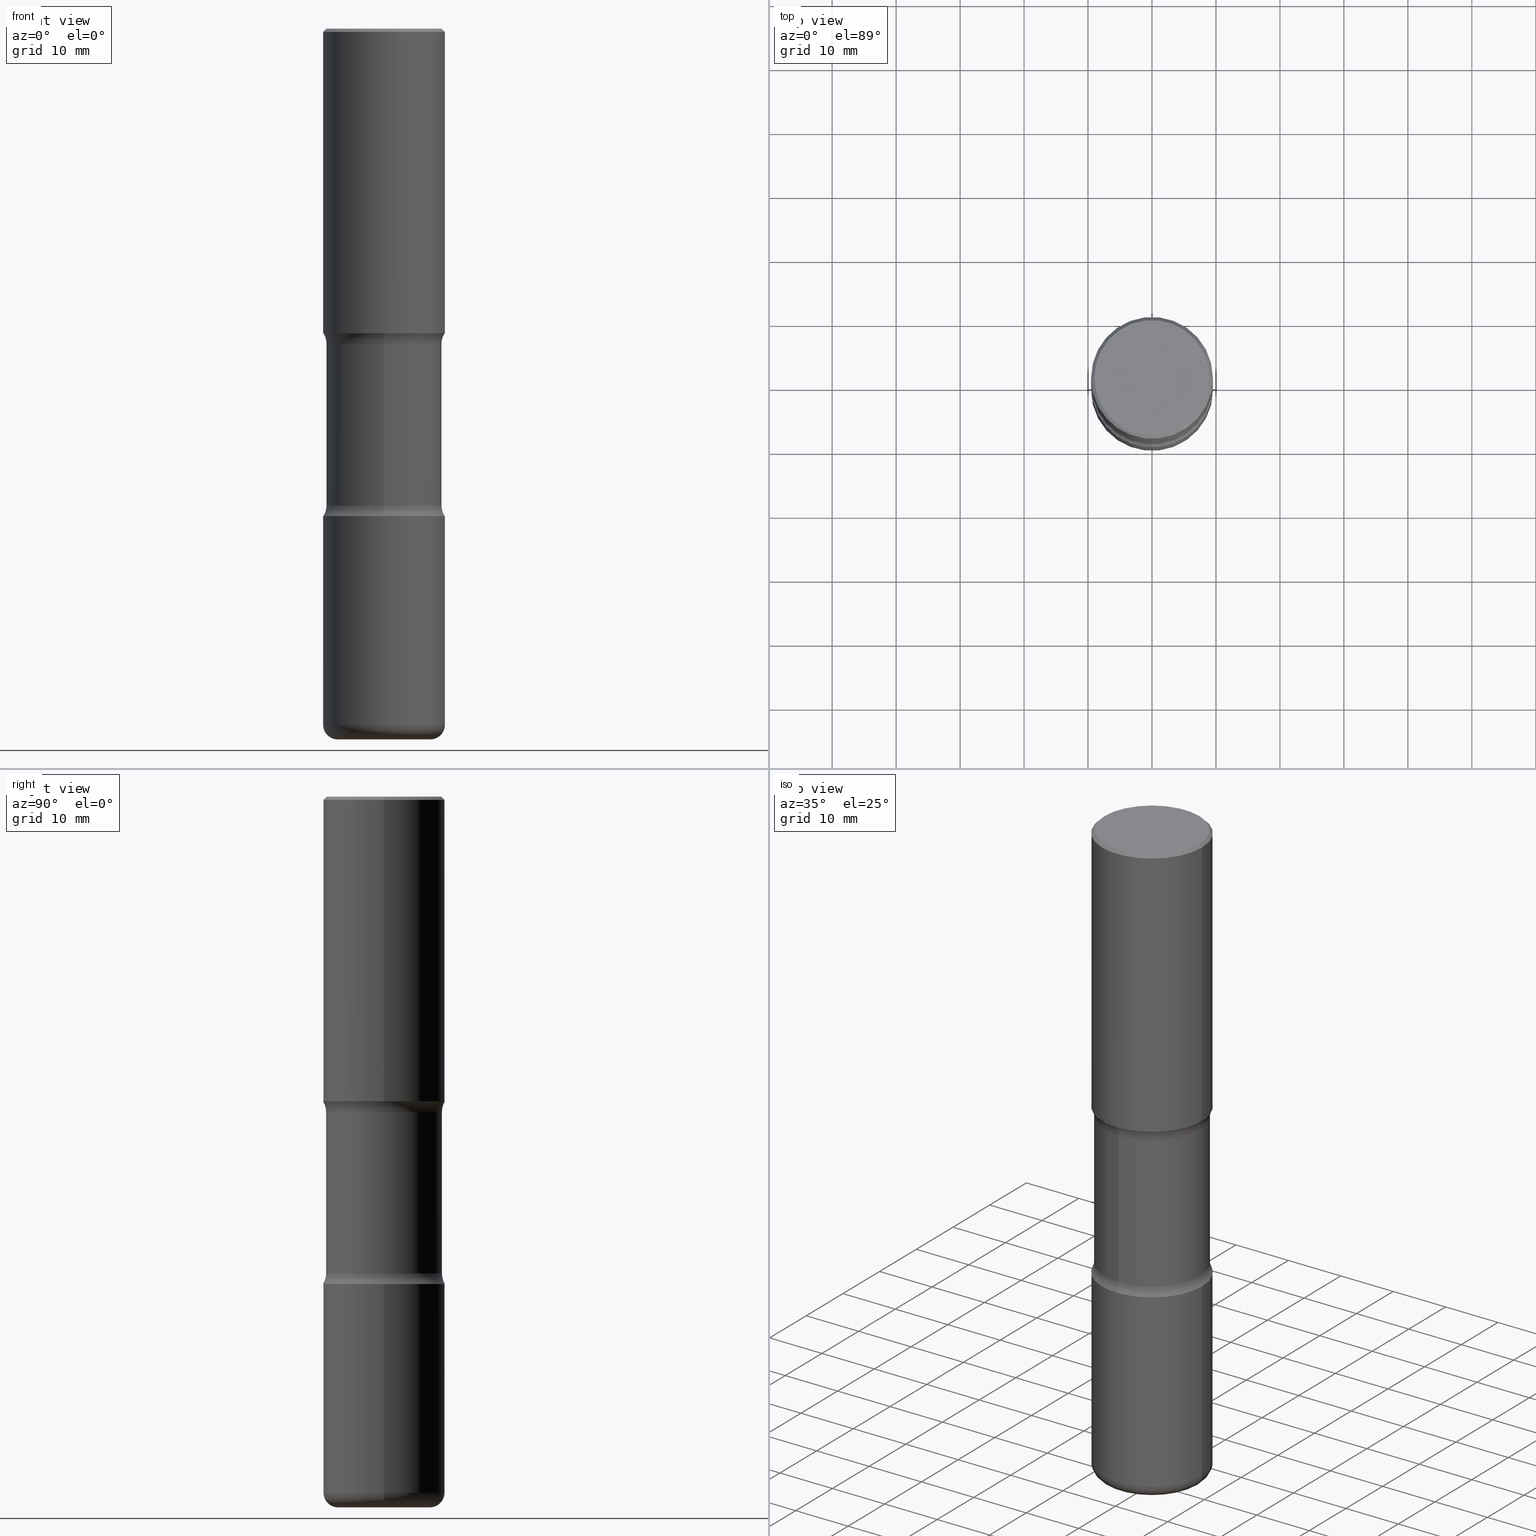
[diagram: canonical four-view strip — front | top / right | iso, engineering-drawing reading convention]
A machine part, canonical four-view strip (front | top / right | iso — engineering-drawing reading convention). The complete STEP part file that produces these views, byte-faithful:
ISO-10303-21;
HEADER;
FILE_DESCRIPTION (( 'STEP AP203' ),
    '1' );
FILE_NAME ('34118.STEP',
    '2024-03-01T23:06:38',
    ( '' ),
    ( '' ),
    'SwSTEP 2.0',
    'SolidWorks 2023',
    '' );
FILE_SCHEMA (( 'CONFIG_CONTROL_DESIGN' ));
ENDSEC;

DATA;
#1 = FACE_OUTER_BOUND ( 'NONE', #129, .T. ) ;
#2 = ORIENTED_EDGE ( 'NONE', *, *, #104, .F. ) ;
#3 = DIRECTION ( 'NONE',  ( 1.000000000000000000, -6.982962677686266711E-15, 4.883557194083113462E-29 ) ) ;
#4 = VERTEX_POINT ( 'NONE', #487 ) ;
#5 = CARTESIAN_POINT ( 'NONE',  ( 2.618611004132424169E-15, 0.3749999999999897304, -3.000000000000000888 ) ) ;
#6 = AXIS2_PLACEMENT_3D ( 'NONE', #414, #370, #409 ) ;
#7 = EDGE_LOOP ( 'NONE', ( #429, #484, #329, #159 ) ) ;
#8 = ORIENTED_EDGE ( 'NONE', *, *, #310, .F. ) ;
#9 = PERSON_AND_ORGANIZATION ( #349, #477 ) ;
#10 = DIRECTION ( 'NONE',  ( 2.497495331405690228E-29, -3.416976393561393039E-15, -1.000000000000000000 ) ) ;
#11 = FACE_OUTER_BOUND ( 'NONE', #351, .T. ) ;
#12 = EDGE_LOOP ( 'NONE', ( #322, #334 ) ) ;
#13 = CARTESIAN_POINT ( 'NONE',  ( 4.890937612370306439E-31, -6.982962677686338448E-17, -0.02000000000000013572 ) ) ;
#14 = AXIS2_PLACEMENT_3D ( 'NONE', #188, #98, #18 ) ;
#15 = CC_DESIGN_APPROVAL ( #324, ( #178 ) ) ;
#16 = LINE ( 'NONE', #307, #406 ) ;
#17 = ADVANCED_FACE ( 'NONE', ( #123 ), #211, .F. ) ;
#18 = DIRECTION ( 'NONE',  ( 6.982962677686265922E-15, 1.000000000000000000, -3.416976393561393039E-15 ) ) ;
#19 = CARTESIAN_POINT ( 'NONE',  ( 0.2850000000000004197, -1.695114190008346703E-14, -4.285000000000000142 ) ) ;
#20 = EDGE_CURVE ( 'NONE', #68, #336, #272, .T. ) ;
#21 = ADVANCED_BREP_SHAPE_REPRESENTATION ( '34118', ( #262, #443, #67, #541 ), #219 ) ;
#22 = AXIS2_PLACEMENT_3D ( 'NONE', #19, #446, #61 ) ;
#23 = DIRECTION ( 'NONE',  ( 2.497495331405690228E-29, -3.416976393561393039E-15, -1.000000000000000000 ) ) ;
#24 = PERSON_AND_ORGANIZATION ( #349, #477 ) ;
#25 = FACE_OUTER_BOUND ( 'NONE', #290, .T. ) ;
#26 = ORIENTED_EDGE ( 'NONE', *, *, #490, .T. ) ;
#27 = CARTESIAN_POINT ( 'NONE',  ( -0.3750000000000002220, 2.548781377355488296E-15, -0.02000000000000013572 ) ) ;
#28 = ORIENTED_EDGE ( 'NONE', *, *, #103, .F. ) ;
#29 = CIRCLE ( 'NONE', #547, 0.3750000000000004441 ) ;
#30 = AXIS2_PLACEMENT_3D ( 'NONE', #46, #255, #389 ) ;
#31 = DIRECTION ( 'NONE',  ( 0.000000000000000000, 0.000000000000000000, 1.000000000000000000 ) ) ;
#32 = DIRECTION ( 'NONE',  ( 6.982962677686265922E-15, 1.000000000000000000, -3.416976393561393039E-15 ) ) ;
#33 = CC_DESIGN_PERSON_AND_ORGANIZATION_ASSIGNMENT ( #24, #200, ( #178 ) ) ;
#34 = CYLINDRICAL_SURFACE ( 'NONE', #533, 0.3564999999999999836 ) ;
#35 = CARTESIAN_POINT ( 'NONE',  ( 2.489426194595200956E-15, 0.3564999999999931557, -1.940442723048481977 ) ) ;
#36 = EDGE_LOOP ( 'NONE', ( #419, #292 ) ) ;
#37 = DIRECTION ( 'NONE',  ( 6.860497997771527618E-15, 1.000000000000000000, 0.000000000000000000 ) ) ;
#38 = CIRCLE ( 'NONE', #391, 0.3750000000000002220 ) ;
#39 = CALENDAR_DATE ( 2024, 1, 3 ) ;
#40 = CARTESIAN_POINT ( 'NONE',  ( 1.077046249923823256E-28, -1.517278655767635025E-14, -4.375000000000000000 ) ) ;
#41 = ORIENTED_EDGE ( 'NONE', *, *, #363, .F. ) ;
#42 = ORIENTED_EDGE ( 'NONE', *, *, #527, .T. ) ;
#43 = FACE_OUTER_BOUND ( 'NONE', #377, .T. ) ;
#44 = PLANE ( 'NONE',  #488 ) ;
#45 = APPROVAL_STATUS ( 'not_yet_approved' ) ;
#46 = CARTESIAN_POINT ( 'NONE',  ( 7.336406418555408669E-29, -1.047444401652943478E-14, -2.999999999999999556 ) ) ;
#47 = DIRECTION ( 'NONE',  ( -1.000000000000000000, 6.982962677686265922E-15, -4.883557194083112340E-29 ) ) ;
#48 = ADVANCED_FACE ( 'NONE', ( #532 ), #169, .T. ) ;
#49 = AXIS2_PLACEMENT_3D ( 'NONE', #481, #295, #254 ) ;
#50 = DIRECTION ( 'NONE',  ( -1.000000000000000000, 6.982962677686265922E-15, -4.883557194083112340E-29 ) ) ;
#51 = ORIENTED_EDGE ( 'NONE', *, *, #270, .T. ) ;
#52 = APPROVAL ( #144, 'UNSPECIFIED' ) ;
#53 = CYLINDRICAL_SURFACE ( 'NONE', #500, 0.3750000000000003886 ) ;
#54 = DIRECTION ( 'NONE',  ( -2.445468806185136597E-29, 3.491481338843145583E-15, 1.000000000000000000 ) ) ;
#55 = FACE_OUTER_BOUND ( 'NONE', #166, .T. ) ;
#56 = CIRCLE ( 'NONE', #6, 0.3750000000000002220 ) ;
#57 = DIRECTION ( 'NONE',  ( 1.000000000000000000, -6.982962677686269866E-15, 0.000000000000000000 ) ) ;
#58 = ADVANCED_FACE ( 'NONE', ( #11 ), #53, .T. ) ;
#59 = DIRECTION ( 'NONE',  ( 6.982962677686265922E-15, 1.000000000000000000, -3.416976393561393039E-15 ) ) ;
#60 = EDGE_CURVE ( 'NONE', #560, #4, #381, .T. ) ;
#61 = DIRECTION ( 'NONE',  ( 1.000000000000000000, -6.982962677686273021E-15, 0.000000000000000000 ) ) ;
#62 = CIRCLE ( 'NONE', #450, 0.3750000000000002220 ) ;
#63 = CALENDAR_DATE ( 2024, 1, 3 ) ;
#64 = FACE_OUTER_BOUND ( 'NONE', #36, .T. ) ;
#65 = COORDINATED_UNIVERSAL_TIME_OFFSET ( 5, 0, .BEHIND. ) ;
#66 = CARTESIAN_POINT ( 'NONE',  ( -1.043851414335219820E-46, 1.490343170380447200E-32, 4.268512490100411279E-18 ) ) ;
#67 = MANIFOLD_SOLID_BREP ( 'Body-Move/Copy2[4]', #180 ) ;
#68 = VERTEX_POINT ( 'NONE', #293 ) ;
#69 = ORIENTED_EDGE ( 'NONE', *, *, #527, .F. ) ;
#70 = ADVANCED_FACE ( 'NONE', ( #86 ), #44, .F. ) ;
#71 = CARTESIAN_POINT ( 'NONE',  ( 4.890937612370306439E-31, -6.982962677686338448E-17, -0.02000000000000013572 ) ) ;
#72 = ORIENTED_EDGE ( 'NONE', *, *, #369, .F. ) ;
#73 = AXIS2_PLACEMENT_3D ( 'NONE', #79, #199, #242 ) ;
#74 = CIRCLE ( 'NONE', #107, 0.1249999999999999584 ) ;
#75 = EDGE_CURVE ( 'NONE', #337, #318, #462, .T. ) ;
#76 = COORDINATED_UNIVERSAL_TIME_OFFSET ( 5, 0, .BEHIND. ) ;
#77 = CARTESIAN_POINT ( 'NONE',  ( 0.3750000000000002220, -2.642516375941189606E-15, -0.02000000000000013572 ) ) ;
#78 = EDGE_LOOP ( 'NONE', ( #197, #26, #203, #415 ) ) ;
#79 = CARTESIAN_POINT ( 'NONE',  ( 4.585254011597132801E-29, -6.546527510330900285E-15, -1.875000000000000666 ) ) ;
#80 = ORIENTED_EDGE ( 'NONE', *, *, #466, .T. ) ;
#81 = CARTESIAN_POINT ( 'NONE',  ( 2.478951750578625787E-15, 0.3550000000000001488, -1.237341619044267019E-15 ) ) ;
#82 = ORIENTED_EDGE ( 'NONE', *, *, #299, .F. ) ;
#83 = EDGE_CURVE ( 'NONE', #514, #560, #228, .T. ) ;
#84 = AXIS2_PLACEMENT_3D ( 'NONE', #398, #54, #222 ) ;
#85 = CARTESIAN_POINT ( 'NONE',  ( 4.690167066012064720E-29, -6.853961813559904754E-15, -1.940442723048480866 ) ) ;
#86 = FACE_OUTER_BOUND ( 'NONE', #347, .T. ) ;
#87 = DIRECTION ( 'NONE',  ( 6.860497997771532351E-15, 1.000000000000000000, 0.000000000000000000 ) ) ;
#88 = CARTESIAN_POINT ( 'NONE',  ( 0.000000000000000000, 0.000000000000000000, 0.000000000000000000 ) ) ;
#89 = SHAPE_DEFINITION_REPRESENTATION ( #478, #21 ) ;
#90 = DIRECTION ( 'NONE',  ( 7.105427357601001859E-15, 1.000000000000000000, -3.491481338843145583E-15 ) ) ;
#91 = EDGE_CURVE ( 'NONE', #514, #496, #160, .T. ) ;
#92 = CARTESIAN_POINT ( 'NONE',  ( 1.069892602705997485E-28, -1.527523085743876365E-14, -4.375000000000000888 ) ) ;
#93 = CIRCLE ( 'NONE', #132, 0.3750000000000002220 ) ;
#94 = VECTOR ( 'NONE', #151, 39.37007874015748143 ) ;
#95 = VERTEX_POINT ( 'NONE', #191 ) ;
#96 = ORIENTED_EDGE ( 'NONE', *, *, #265, .F. ) ;
#97 = ORIENTED_EDGE ( 'NONE', *, *, #75, .T. ) ;
#98 = DIRECTION ( 'NONE',  ( 2.497495331405690228E-29, -3.416976393561393039E-15, -1.000000000000000000 ) ) ;
#99 = DIRECTION ( 'NONE',  ( 1.000000000000000000, -6.982962677686266711E-15, 4.876231632511985941E-29 ) ) ;
#100 = AXIS2_PLACEMENT_3D ( 'NONE', #131, #23, #143 ) ;
#101 = CC_DESIGN_SECURITY_CLASSIFICATION ( #317, ( #445 ) ) ;
#102 = CARTESIAN_POINT ( 'NONE',  ( 4.526724170724010211E-29, -6.630345573772872586E-15, -1.875000000000000666 ) ) ;
#103 = EDGE_CURVE ( 'NONE', #243, #318, #402, .T. ) ;
#104 = EDGE_CURVE ( 'NONE', #434, #243, #29, .T. ) ;
#105 = CARTESIAN_POINT ( 'NONE',  ( -2.572686749164281343E-15, -0.3750000000000069944, -1.874999999999999334 ) ) ;
#106 = FACE_OUTER_BOUND ( 'NONE', #503, .T. ) ;
#107 = AXIS2_PLACEMENT_3D ( 'NONE', #425, #50, #528 ) ;
#108 = DIRECTION ( 'NONE',  ( -2.445468806185136877E-29, 3.491481338843145188E-15, 1.000000000000000000 ) ) ;
#109 = ORIENTED_EDGE ( 'NONE', *, *, #226, .F. ) ;
#110 = ADVANCED_FACE ( 'NONE', ( #55 ), #494, .F. ) ;
#111 = CALENDAR_DATE ( 2024, 1, 3 ) ;
#112 = DIRECTION ( 'NONE',  ( 2.497495331405690228E-29, -3.416976393561393039E-15, -1.000000000000000000 ) ) ;
#113 = APPLICATION_PROTOCOL_DEFINITION ( 'international standard', 'config_control_design', 1994, #138 ) ;
#114 = CYLINDRICAL_SURFACE ( 'NONE', #539, 0.3750000000000003886 ) ;
#115 = VECTOR ( 'NONE', #108, 39.37007874015748143 ) ;
#116 = CIRCLE ( 'NONE', #392, 0.3750000000000003886 ) ;
#117 = DIRECTION ( 'NONE',  ( 2.497495331405690228E-29, -3.416976393561393039E-15, -1.000000000000000000 ) ) ;
#118 = VERTEX_POINT ( 'NONE', #185 ) ;
#119 = COORDINATED_UNIVERSAL_TIME_OFFSET ( 5, 0, .BEHIND. ) ;
#120 = CARTESIAN_POINT ( 'NONE',  ( -3.303329785926944712E-15, -0.4815000000000068114, -1.940442723048479312 ) ) ;
#121 = ORIENTED_EDGE ( 'NONE', *, *, #155, .T. ) ;
#122 = DIRECTION ( 'NONE',  ( 6.982962677686266711E-15, 1.000000000000000000, -3.065187089665372450E-15 ) ) ;
#123 = FACE_OUTER_BOUND ( 'NONE', #163, .T. ) ;
#124 = VECTOR ( 'NONE', #513, 39.37007874015748143 ) ;
#125 = AXIS2_PLACEMENT_3D ( 'NONE', #245, #214, #291 ) ;
#126 = FACE_OUTER_BOUND ( 'NONE', #12, .T. ) ;
#127 = VERTEX_POINT ( 'NONE', #404 ) ;
#128 = DIRECTION ( 'NONE',  ( 2.497495331405690228E-29, -3.416976393561393039E-15, -1.000000000000000000 ) ) ;
#129 = EDGE_LOOP ( 'NONE', ( #505, #338, #546, #2 ) ) ;
#130 = CARTESIAN_POINT ( 'NONE',  ( -0.3750000000000003886, 2.664535259100378458E-15, -1.844600658845591560E-29 ) ) ;
#131 = CARTESIAN_POINT ( 'NONE',  ( 7.336406418555408669E-29, -1.047444401652943478E-14, -2.999999999999999556 ) ) ;
#132 = AXIS2_PLACEMENT_3D ( 'NONE', #13, #311, #542 ) ;
#133 = ADVANCED_FACE ( 'NONE', ( #498 ), #368, .F. ) ;
#134 = AXIS2_PLACEMENT_3D ( 'NONE', #85, #128, #250 ) ;
#135 = DIRECTION ( 'NONE',  ( 2.497495331405690228E-29, -3.416976393561393039E-15, -1.000000000000000000 ) ) ;
#136 = DIRECTION ( 'NONE',  ( 6.982962677686265922E-15, 1.000000000000000000, -3.065187089665373239E-15 ) ) ;
#137 = DIRECTION ( 'NONE',  ( 6.982962677686265922E-15, 1.000000000000000000, -3.416976393561393039E-15 ) ) ;
#138 = APPLICATION_CONTEXT ( 'configuration controlled 3d designs of mechanical parts and assemblies' ) ;
#139 = CARTESIAN_POINT ( 'NONE',  ( -1.043851414335219820E-46, 1.490343170380447200E-32, 4.268512490100411279E-18 ) ) ;
#140 = CIRCLE ( 'NONE', #461, 0.2850000000000004197 ) ;
#141 = ADVANCED_FACE ( 'NONE', ( #362 ), #264, .T. ) ;
#142 = CARTESIAN_POINT ( 'NONE',  ( 4.585254011597132801E-29, -6.546527510330900285E-15, -1.875000000000000666 ) ) ;
#143 = DIRECTION ( 'NONE',  ( 6.982962677686266711E-15, 1.000000000000000000, -2.913971193241879189E-15 ) ) ;
#144 = APPROVAL_STATUS ( 'not_yet_approved' ) ;
#145 = CARTESIAN_POINT ( 'NONE',  ( -0.3750000000000003886, 2.664535259100378458E-15, -1.844600658845591560E-29 ) ) ;
#146 = ORIENTED_EDGE ( 'NONE', *, *, #454, .F. ) ;
#147 = VERTEX_POINT ( 'NONE', #105 ) ;
#148 = AXIS2_PLACEMENT_3D ( 'NONE', #184, #449, #364 ) ;
#149 = LOCAL_TIME ( 18, 6, 38.00000000000000000, #296 ) ;
#150 = DESIGN_CONTEXT ( 'detailed design', #420, 'design' ) ;
#151 = DIRECTION ( 'NONE',  ( -0.7071067811865461294, 2.468850131082242072E-15, -0.7071067811865489050 ) ) ;
#152 = EDGE_CURVE ( 'NONE', #318, #337, #38, .T. ) ;
#153 = PLANE ( 'NONE',  #217 ) ;
#154 = DIMENSIONAL_EXPONENTS ( 1.000000000000000000, 0.000000000000000000, 0.000000000000000000, 0.000000000000000000, 0.000000000000000000, 0.000000000000000000, 0.000000000000000000 ) ;
#155 = EDGE_CURVE ( 'NONE', #241, #95, #556, .T. ) ;
#156 = PERSON_AND_ORGANIZATION_ROLE ( 'design_owner' ) ;
#157 = CARTESIAN_POINT ( 'NONE',  ( 0.3750000000000002220, -1.309305502066178637E-14, -2.999999999999999556 ) ) ;
#158 = ORIENTED_EDGE ( 'NONE', *, *, #202, .T. ) ;
#159 = ORIENTED_EDGE ( 'NONE', *, *, #83, .F. ) ;
#160 = CIRCLE ( 'NONE', #100, 0.3750000000000002220 ) ;
#161 = APPROVAL_DATE_TIME ( #417, #324 ) ;
#162 = CARTESIAN_POINT ( 'NONE',  ( 0.000000000000000000, 0.000000000000000000, 0.000000000000000000 ) ) ;
#163 = EDGE_LOOP ( 'NONE', ( #240, #97 ) ) ;
#164 = CARTESIAN_POINT ( 'NONE',  ( 4.690167066012064720E-29, -6.853961813559904754E-15, -1.940442723048480866 ) ) ;
#165 = ORIENTED_EDGE ( 'NONE', *, *, #60, .F. ) ;
#166 = EDGE_LOOP ( 'NONE', ( #460, #80, #42, #251 ) ) ;
#167 = CYLINDRICAL_SURFACE ( 'NONE', #125, 0.3750000000000003886 ) ;
#168 = EDGE_CURVE ( 'NONE', #276, #147, #475, .T. ) ;
#169 = CYLINDRICAL_SURFACE ( 'NONE', #181, 0.3750000000000003886 ) ;
#170 = ADVANCED_FACE ( 'NONE', ( #106 ), #269, .F. ) ;
#171 = AXIS2_PLACEMENT_3D ( 'NONE', #142, #306, #59 ) ;
#172 = TOROIDAL_SURFACE ( 'NONE', #557, 0.2850000000000004197, 0.09000000000000020484 ) ;
#173 = CARTESIAN_POINT ( 'NONE',  ( 4.526724170724010211E-29, -6.630345573772872586E-15, -1.875000000000000666 ) ) ;
#174 = ORIENTED_EDGE ( 'NONE', *, *, #168, .T. ) ;
#175 = ORIENTED_EDGE ( 'NONE', *, *, #83, .T. ) ;
#176 = DIRECTION ( 'NONE',  ( 1.000000000000000000, -6.982962677686266711E-15, 4.883557194083113462E-29 ) ) ;
#177 = CARTESIAN_POINT ( 'NONE',  ( 4.585254011597132801E-29, -6.546527510330900285E-15, -1.875000000000000666 ) ) ;
#178 = PRODUCT_DEFINITION ( 'UNKNOWN', '', #445, #150 ) ;
#179 = ORIENTED_EDGE ( 'NONE', *, *, #363, .T. ) ;
#180 = CLOSED_SHELL ( 'NONE', ( #141, #230, #110, #133, #170, #509, #300, #403 ) ) ;
#181 = AXIS2_PLACEMENT_3D ( 'NONE', #439, #519, #390 ) ;
#182 = CARTESIAN_POINT ( 'NONE',  ( -2.509227142684892896E-15, -0.3565000000000068114, -1.940442723048479756 ) ) ;
#183 = EDGE_CURVE ( 'NONE', #243, #434, #236, .T. ) ;
#184 = CARTESIAN_POINT ( 'NONE',  ( 4.697601167951830213E-29, -6.843315756459355709E-15, -1.940442723048480866 ) ) ;
#185 = CARTESIAN_POINT ( 'NONE',  ( -0.3750000000000004441, -6.436433094535026432E-16, -1.875000000000000666 ) ) ;
#186 = EDGE_CURVE ( 'NONE', #453, #382, #93, .T. ) ;
#187 = CONICAL_SURFACE ( 'NONE', #189, 0.3750000000000002220, 0.7853981633974463916 ) ;
#188 = CARTESIAN_POINT ( 'NONE',  ( 4.697601167951830213E-29, -6.843315756459355709E-15, -1.940442723048480866 ) ) ;
#189 = AXIS2_PLACEMENT_3D ( 'NONE', #278, #457, #504 ) ;
#190 = CC_DESIGN_DATE_AND_TIME_ASSIGNMENT ( #193, #544, ( #178 ) ) ;
#191 = CARTESIAN_POINT ( 'NONE',  ( -0.3550000000000001488, 2.513866563967057041E-15, 4.268512490082953109E-18 ) ) ;
#192 = PRODUCT ( '34118', '34118', '', ( #282 ) ) ;
#193 = DATE_AND_TIME ( #63, #436 ) ;
#194 = DIRECTION ( 'NONE',  ( -2.445468806185136597E-29, 3.491481338843145583E-15, 1.000000000000000000 ) ) ;
#195 = ORIENTED_EDGE ( 'NONE', *, *, #441, .T. ) ;
#196 = LINE ( 'NONE', #549, #94 ) ;
#197 = ORIENTED_EDGE ( 'NONE', *, *, #312, .T. ) ;
#198 = AXIS2_PLACEMENT_3D ( 'NONE', #354, #535, #136 ) ;
#199 = DIRECTION ( 'NONE',  ( -2.445468806185136597E-29, 3.491481338843145583E-15, 1.000000000000000000 ) ) ;
#200 = PERSON_AND_ORGANIZATION_ROLE ( 'creator' ) ;
#201 = DIRECTION ( 'NONE',  ( 1.000000000000000000, -6.982962677686266711E-15, 4.876231632511985941E-29 ) ) ;
#202 = EDGE_CURVE ( 'NONE', #118, #127, #257, .T. ) ;
#203 = ORIENTED_EDGE ( 'NONE', *, *, #183, .F. ) ;
#204 = VERTEX_POINT ( 'NONE', #182 ) ;
#205 = EDGE_CURVE ( 'NONE', #336, #243, #399, .T. ) ;
#206 = ORIENTED_EDGE ( 'NONE', *, *, #401, .F. ) ;
#207 = AXIS2_PLACEMENT_3D ( 'NONE', #327, #117, #32 ) ;
#208 = APPROVAL_PERSON_ORGANIZATION ( #9, #427, #260 ) ;
#209 = APPROVAL_DATE_TIME ( #249, #427 ) ;
#210 = DIRECTION ( 'NONE',  ( -1.000000000000000000, 6.982962677686265922E-15, -4.876176775795935793E-29 ) ) ;
#211 = PLANE ( 'NONE',  #405 ) ;
#212 = DIRECTION ( 'NONE',  ( 2.438088387897960049E-29, -3.491481338843145188E-15, -1.000000000000000000 ) ) ;
#213 = DIRECTION ( 'NONE',  ( -2.445468806185136597E-29, 3.491481338843145583E-15, 1.000000000000000000 ) ) ;
#214 = DIRECTION ( 'NONE',  ( -2.445468806185136597E-29, 3.491481338843145583E-15, 1.000000000000000000 ) ) ;
#215 = ORIENTED_EDGE ( 'NONE', *, *, #186, .T. ) ;
#216 = DIRECTION ( 'NONE',  ( -6.982962677686264344E-15, -1.000000000000000000, 0.000000000000000000 ) ) ;
#217 = AXIS2_PLACEMENT_3D ( 'NONE', #321, #366, #422 ) ;
#218 = TOROIDAL_SURFACE ( 'NONE', #207, 0.4815000000000000946, 0.1250000000000000555 ) ;
#219 =( GEOMETRIC_REPRESENTATION_CONTEXT ( 3 ) GLOBAL_UNCERTAINTY_ASSIGNED_CONTEXT ( ( #224 ) ) GLOBAL_UNIT_ASSIGNED_CONTEXT ( ( #421, #515, #408 ) ) REPRESENTATION_CONTEXT ( 'NONE', 'WORKASPACE' ) );
#220 = DIRECTION ( 'NONE',  ( -2.445468806185136597E-29, 3.491481338843145583E-15, 1.000000000000000000 ) ) ;
#221 = CARTESIAN_POINT ( 'NONE',  ( 7.172963523267356402E-29, -1.025082777674240497E-14, -2.934557276951519800 ) ) ;
#222 = DIRECTION ( 'NONE',  ( 1.000000000000000000, -6.982962677686269866E-15, 0.000000000000000000 ) ) ;
#223 = AXIS2_PLACEMENT_3D ( 'NONE', #356, #536, #137 ) ;
#224 = UNCERTAINTY_MEASURE_WITH_UNIT (LENGTH_MEASURE( 1.000000000000000082E-05 ), #421, 'distance_accuracy_value', 'NONE');
#225 = CARTESIAN_POINT ( 'NONE',  ( 0.3750000000000003886, -2.618611004132352383E-15, 1.828566290923477884E-29 ) ) ;
#226 = EDGE_CURVE ( 'NONE', #4, #560, #266, .T. ) ;
#227 = DIRECTION ( 'NONE',  ( -2.445468806185136877E-29, 3.491481338843145188E-15, 1.000000000000000000 ) ) ;
#228 = CIRCLE ( 'NONE', #510, 0.1250000000000001110 ) ;
#229 = DIRECTION ( 'NONE',  ( 6.982962677686266711E-15, 1.000000000000000000, -3.065187089665372450E-15 ) ) ;
#230 = ADVANCED_FACE ( 'NONE', ( #492 ), #328, .F. ) ;
#231 = FACE_OUTER_BOUND ( 'NONE', #253, .T. ) ;
#232 = DIRECTION ( 'NONE',  ( -2.445468806185136597E-29, 3.491481338843145583E-15, 1.000000000000000000 ) ) ;
#233 = EDGE_LOOP ( 'NONE', ( #397, #121 ) ) ;
#234 = CARTESIAN_POINT ( 'NONE',  ( -0.3750000000000002220, -1.005318551763577873E-14, -2.999999999999999556 ) ) ;
#235 = ORIENTED_EDGE ( 'NONE', *, *, #103, .T. ) ;
#236 = CIRCLE ( 'NONE', #84, 0.3750000000000004441 ) ;
#237 = AXIS2_PLACEMENT_3D ( 'NONE', #252, #90, #474 ) ;
#238 = EDGE_CURVE ( 'NONE', #127, #453, #16, .T. ) ;
#239 = CARTESIAN_POINT ( 'NONE',  ( 2.489426194595261699E-15, 0.3564999999999848290, -4.375000000000000888 ) ) ;
#240 = ORIENTED_EDGE ( 'NONE', *, *, #152, .T. ) ;
#241 = VERTEX_POINT ( 'NONE', #553 ) ;
#242 = DIRECTION ( 'NONE',  ( 1.000000000000000000, -6.982962677686265133E-15, 0.000000000000000000 ) ) ;
#243 = VERTEX_POINT ( 'NONE', #274 ) ;
#244 = PERSON_AND_ORGANIZATION ( #349, #477 ) ;
#245 = CARTESIAN_POINT ( 'NONE',  ( 0.000000000000000000, 0.000000000000000000, 0.000000000000000000 ) ) ;
#246 = EDGE_LOOP ( 'NONE', ( #357, #480, #195, #174 ) ) ;
#247 = AXIS2_PLACEMENT_3D ( 'NONE', #221, #135, #476 ) ;
#248 = CIRCLE ( 'NONE', #489, 0.1250000000000001110 ) ;
#249 = DATE_AND_TIME ( #485, #149 ) ;
#250 = DIRECTION ( 'NONE',  ( 6.982962677686266711E-15, 1.000000000000000000, -3.065187089665372450E-15 ) ) ;
#251 = ORIENTED_EDGE ( 'NONE', *, *, #441, .F. ) ;
#252 = CARTESIAN_POINT ( 'NONE',  ( -0.2850000000000004197, -1.293595074002659227E-14, -4.285000000000000142 ) ) ;
#253 = EDGE_LOOP ( 'NONE', ( #470, #367, #175, #339 ) ) ;
#254 = DIRECTION ( 'NONE',  ( 1.000000000000000000, -6.982962677686263555E-15, 0.000000000000000000 ) ) ;
#255 = DIRECTION ( 'NONE',  ( -2.497495331405689947E-29, 3.416976393561393039E-15, 1.000000000000000000 ) ) ;
#256 = ORIENTED_EDGE ( 'NONE', *, *, #183, .T. ) ;
#257 = CIRCLE ( 'NONE', #352, 0.3750000000000004441 ) ;
#258 = LOCAL_TIME ( 18, 6, 38.00000000000000000, #430 ) ;
#259 = EDGE_CURVE ( 'NONE', #496, #514, #56, .T. ) ;
#260 = APPROVAL_ROLE ( '' ) ;
#261 = DIRECTION ( 'NONE',  ( -1.000000000000000000, 6.982962677686265922E-15, -4.876176775795935793E-29 ) ) ;
#262 = MANIFOLD_SOLID_BREP ( 'Body-Move/Copy2[1]', #379 ) ;
#263 = VERTEX_POINT ( 'NONE', #35 ) ;
#264 = CYLINDRICAL_SURFACE ( 'NONE', #444, 0.3564999999999999836 ) ;
#265 = EDGE_CURVE ( 'NONE', #382, #453, #62, .T. ) ;
#266 = CIRCLE ( 'NONE', #198, 0.3564999999999999281 ) ;
#267 = CIRCLE ( 'NONE', #237, 0.09000000000000020484 ) ;
#268 = DIRECTION ( 'NONE',  ( -2.445468806185136597E-29, 3.491481338843145583E-15, 1.000000000000000000 ) ) ;
#269 = PLANE ( 'NONE',  #171 ) ;
#270 = EDGE_CURVE ( 'NONE', #241, #453, #469, .T. ) ;
#271 = CARTESIAN_POINT ( 'NONE',  ( 4.585254011597132801E-29, -6.546527510330900285E-15, -1.875000000000000666 ) ) ;
#272 = CIRCLE ( 'NONE', #555, 0.2850000000000004197 ) ;
#273 = CC_DESIGN_PERSON_AND_ORGANIZATION_ASSIGNMENT ( #244, #437, ( #317 ) ) ;
#274 = CARTESIAN_POINT ( 'NONE',  ( 0.3750000000000004996, -1.757960854107523356E-14, -4.285000000000000142 ) ) ;
#275 = CIRCLE ( 'NONE', #383, 0.3564999999999999836 ) ;
#276 = VERTEX_POINT ( 'NONE', #332 ) ;
#277 = APPLICATION_PROTOCOL_DEFINITION ( 'international standard', 'config_control_design', 1994, #420 ) ;
#278 = CARTESIAN_POINT ( 'NONE',  ( 4.890937612370306439E-31, -6.982962677686338448E-17, -0.02000000000000013572 ) ) ;
#279 = EDGE_LOOP ( 'NONE', ( #330, #179, #473, #376 ) ) ;
#280 = PERSON_AND_ORGANIZATION ( #349, #477 ) ;
#281 = FACE_OUTER_BOUND ( 'NONE', #396, .T. ) ;
#282 = MECHANICAL_CONTEXT ( 'NONE', #138, 'mechanical' ) ;
#283 = LINE ( 'NONE', #516, #522 ) ;
#284 = EDGE_CURVE ( 'NONE', #204, #4, #283, .T. ) ;
#285 = CONICAL_SURFACE ( 'NONE', #360, 0.3750000000000002220, 0.7853981633974463916 ) ;
#286 = VECTOR ( 'NONE', #483, 39.37007874015748143 ) ;
#287 = LOCAL_TIME ( 18, 6, 38.00000000000000000, #76 ) ;
#288 = DIRECTION ( 'NONE',  ( -2.445468806185136597E-29, 3.491481338843145583E-15, 1.000000000000000000 ) ) ;
#289 = DIRECTION ( 'NONE',  ( 1.000000000000000000, -6.860497997771530774E-15, 4.841711302051742582E-29 ) ) ;
#290 = EDGE_LOOP ( 'NONE', ( #41, #158, #550, #96 ) ) ;
#291 = DIRECTION ( 'NONE',  ( 1.000000000000000000, -6.982962677686265922E-15, 4.876176775795935793E-29 ) ) ;
#292 = ORIENTED_EDGE ( 'NONE', *, *, #20, .F. ) ;
#293 = CARTESIAN_POINT ( 'NONE',  ( -0.2850000000000004197, -1.277332316918248932E-14, -4.375000000000000888 ) ) ;
#294 = DIRECTION ( 'NONE',  ( 6.982962677686266711E-15, 1.000000000000000000, -3.065187089665372450E-15 ) ) ;
#295 = DIRECTION ( 'NONE',  ( -2.445468806185136597E-29, 3.491481338843145583E-15, 1.000000000000000000 ) ) ;
#296 = COORDINATED_UNIVERSAL_TIME_OFFSET ( 5, 0, .BEHIND. ) ;
#297 = FACE_OUTER_BOUND ( 'NONE', #233, .T. ) ;
#298 = CARTESIAN_POINT ( 'NONE',  ( 7.336406418555408669E-29, -1.047444401652943478E-14, -2.999999999999999556 ) ) ;
#299 = EDGE_CURVE ( 'NONE', #263, #560, #452, .T. ) ;
#300 = ADVANCED_FACE ( 'NONE', ( #231 ), #218, .F. ) ;
#301 = SECURITY_CLASSIFICATION_LEVEL ( 'unclassified' ) ;
#302 = FACE_OUTER_BOUND ( 'NONE', #78, .T. ) ;
#303 = EDGE_LOOP ( 'NONE', ( #305, #508, #165, #82 ) ) ;
#304 = AXIS2_PLACEMENT_3D ( 'NONE', #102, #407, #499 ) ;
#305 = ORIENTED_EDGE ( 'NONE', *, *, #448, .T. ) ;
#306 = DIRECTION ( 'NONE',  ( 2.497495331405689947E-29, -3.416976393561393039E-15, -1.000000000000000000 ) ) ;
#307 = CARTESIAN_POINT ( 'NONE',  ( 0.3750000000000003886, -2.618611004132352383E-15, 1.828566290923477884E-29 ) ) ;
#308 = CIRCLE ( 'NONE', #73, 0.3750000000000004441 ) ;
#309 = AXIS2_PLACEMENT_3D ( 'NONE', #120, #289, #87 ) ;
#310 = EDGE_CURVE ( 'NONE', #127, #118, #308, .T. ) ;
#311 = DIRECTION ( 'NONE',  ( -2.445468806185136597E-29, 3.491481338843145583E-15, 1.000000000000000000 ) ) ;
#312 = EDGE_CURVE ( 'NONE', #336, #68, #140, .T. ) ;
#313 = DIRECTION ( 'NONE',  ( 2.497495331405690228E-29, -3.416976393561393039E-15, -1.000000000000000000 ) ) ;
#314 = AXIS2_PLACEMENT_3D ( 'NONE', #139, #497, #99 ) ;
#315 = APPROVAL_ROLE ( '' ) ;
#316 = DIRECTION ( 'NONE',  ( -2.445468806185136597E-29, 3.491481338843145583E-15, 1.000000000000000000 ) ) ;
#317 = SECURITY_CLASSIFICATION ( '', '', #301 ) ;
#318 = VERTEX_POINT ( 'NONE', #157 ) ;
#319 = ORIENTED_EDGE ( 'NONE', *, *, #270, .F. ) ;
#320 = CARTESIAN_POINT ( 'NONE',  ( 0.000000000000000000, 0.000000000000000000, 0.000000000000000000 ) ) ;
#321 = CARTESIAN_POINT ( 'NONE',  ( -1.014648364702081691E-29, -3.204973608169298694E-14, -4.375000000000000000 ) ) ;
#322 = ORIENTED_EDGE ( 'NONE', *, *, #91, .T. ) ;
#323 = FACE_OUTER_BOUND ( 'NONE', #372, .T. ) ;
#324 = APPROVAL ( #463, 'UNSPECIFIED' ) ;
#325 = DIRECTION ( 'NONE',  ( 1.000000000000000000, -6.860497997771530774E-15, 4.841711302051742582E-29 ) ) ;
#326 = CALENDAR_DATE ( 2024, 1, 3 ) ;
#327 = CARTESIAN_POINT ( 'NONE',  ( 7.176368280748539268E-29, -1.024595197024258933E-14, -2.934557276951519800 ) ) ;
#328 = TOROIDAL_SURFACE ( 'NONE', #223, 0.4815000000000000946, 0.1250000000000000555 ) ;
#329 = ORIENTED_EDGE ( 'NONE', *, *, #226, .T. ) ;
#330 = ORIENTED_EDGE ( 'NONE', *, *, #310, .T. ) ;
#331 = AXIS2_PLACEMENT_3D ( 'NONE', #81, #212, #210 ) ;
#332 = CARTESIAN_POINT ( 'NONE',  ( 2.618611004132397743E-15, 0.3749999999999938383, -1.875000000000001998 ) ) ;
#333 = ORIENTED_EDGE ( 'NONE', *, *, #284, .F. ) ;
#334 = ORIENTED_EDGE ( 'NONE', *, *, #259, .T. ) ;
#335 = CARTESIAN_POINT ( 'NONE',  ( 0.3750000000000002220, -2.642516375941189606E-15, -0.02000000000000013572 ) ) ;
#336 = VERTEX_POINT ( 'NONE', #551 ) ;
#337 = VERTEX_POINT ( 'NONE', #234 ) ;
#338 = ORIENTED_EDGE ( 'NONE', *, *, #20, .T. ) ;
#339 = ORIENTED_EDGE ( 'NONE', *, *, #60, .T. ) ;
#340 = VECTOR ( 'NONE', #112, 39.37007874015748143 ) ;
#341 = APPROVAL_PERSON_ORGANIZATION ( #280, #324, #456 ) ;
#342 = PERSON_AND_ORGANIZATION_ROLE ( 'creator' ) ;
#343 = DIRECTION ( 'NONE',  ( 2.497495331405690228E-29, -3.416976393561393039E-15, -1.000000000000000000 ) ) ;
#344 = ORIENTED_EDGE ( 'NONE', *, *, #202, .F. ) ;
#345 = APPROVAL_DATE_TIME ( #471, #52 ) ;
#346 = CARTESIAN_POINT ( 'NONE',  ( -0.3750000000000004996, -1.229646227784250153E-14, -4.285000000000000142 ) ) ;
#347 = EDGE_LOOP ( 'NONE', ( #8, #344 ) ) ;
#348 = ORIENTED_EDGE ( 'NONE', *, *, #454, .T. ) ;
#349 = PERSON ( 'UNSPECIFIED', 'UNSPECIFIED', 'UNSPECIFIED', ('UNSPECIFIED'), ('UNSPECIFIED'), ('UNSPECIFIED') ) ;
#350 = PRODUCT_RELATED_PRODUCT_CATEGORY ( 'detail', '', ( #192 ) ) ;
#351 = EDGE_LOOP ( 'NONE', ( #146, #412, #235, #526 ) ) ;
#352 = AXIS2_PLACEMENT_3D ( 'NONE', #271, #268, #442 ) ;
#353 = ADVANCED_FACE ( 'NONE', ( #64 ), #153, .T. ) ;
#354 = CARTESIAN_POINT ( 'NONE',  ( 7.172963523267356402E-29, -1.025082777674240497E-14, -2.934557276951519800 ) ) ;
#355 = ADVANCED_FACE ( 'NONE', ( #323 ), #285, .T. ) ;
#356 = CARTESIAN_POINT ( 'NONE',  ( 7.176368280748539268E-29, -1.024595197024258933E-14, -2.934557276951519800 ) ) ;
#357 = ORIENTED_EDGE ( 'NONE', *, *, #466, .F. ) ;
#358 = CARTESIAN_POINT ( 'NONE',  ( 1.077046249923823256E-28, -1.517278655767635025E-14, -4.375000000000000000 ) ) ;
#359 = ADVANCED_FACE ( 'NONE', ( #25 ), #114, .T. ) ;
#360 = AXIS2_PLACEMENT_3D ( 'NONE', #559, #507, #375 ) ;
#361 = CIRCLE ( 'NONE', #309, 0.1249999999999999584 ) ;
#362 = FACE_OUTER_BOUND ( 'NONE', #303, .T. ) ;
#363 = EDGE_CURVE ( 'NONE', #118, #382, #545, .T. ) ;
#364 = DIRECTION ( 'NONE',  ( 6.982962677686265922E-15, 1.000000000000000000, -3.416976393561393039E-15 ) ) ;
#365 = ADVANCED_FACE ( 'NONE', ( #418 ), #187, .T. ) ;
#366 = DIRECTION ( 'NONE',  ( 2.438088387897960049E-29, -3.491481338843145188E-15, -1.000000000000000000 ) ) ;
#367 = ORIENTED_EDGE ( 'NONE', *, *, #91, .F. ) ;
#368 = TOROIDAL_SURFACE ( 'NONE', #148, 0.4814999999999999836, 0.1249999999999999861 ) ;
#369 = EDGE_CURVE ( 'NONE', #95, #241, #435, .T. ) ;
#370 = DIRECTION ( 'NONE',  ( 2.497495331405690228E-29, -3.416976393561393039E-15, -1.000000000000000000 ) ) ;
#371 = CC_DESIGN_APPROVAL ( #427, ( #317 ) ) ;
#372 = EDGE_LOOP ( 'NONE', ( #319, #72, #394, #517 ) ) ;
#373 = DIRECTION ( 'NONE',  ( -2.445468806185136877E-29, 3.491481338843145188E-15, 1.000000000000000000 ) ) ;
#374 = PERSON_AND_ORGANIZATION ( #349, #477 ) ;
#375 = DIRECTION ( 'NONE',  ( -1.000000000000000000, 6.982962677686266711E-15, 0.000000000000000000 ) ) ;
#376 = ORIENTED_EDGE ( 'NONE', *, *, #238, .F. ) ;
#377 = EDGE_LOOP ( 'NONE', ( #256, #348, #554, #28 ) ) ;
#378 = CC_DESIGN_PERSON_AND_ORGANIZATION_ASSIGNMENT ( #558, #156, ( #192 ) ) ;
#379 = CLOSED_SHELL ( 'NONE', ( #467, #455, #353, #416, #58, #17 ) ) ;
#380 = DIRECTION ( 'NONE',  ( 1.000000000000000000, -6.982962677686264344E-15, 0.000000000000000000 ) ) ;
#381 = CIRCLE ( 'NONE', #247, 0.3564999999999999281 ) ;
#382 = VERTEX_POINT ( 'NONE', #27 ) ;
#383 = AXIS2_PLACEMENT_3D ( 'NONE', #164, #10, #294 ) ;
#384 = CC_DESIGN_PERSON_AND_ORGANIZATION_ASSIGNMENT ( #395, #482, ( #445 ) ) ;
#385 = DIRECTION ( 'NONE',  ( 2.497495331405690228E-29, -3.416976393561393039E-15, -1.000000000000000000 ) ) ;
#386 = DIRECTION ( 'NONE',  ( 1.000000000000000000, -6.982962677686265922E-15, 4.876176775795935793E-29 ) ) ;
#387 = PLANE ( 'NONE',  #331 ) ;
#388 = DIRECTION ( 'NONE',  ( -2.438088387897960049E-29, 3.491481338843145188E-15, 1.000000000000000000 ) ) ;
#389 = DIRECTION ( 'NONE',  ( -6.982962677686265922E-15, -1.000000000000000000, 3.416976393561393039E-15 ) ) ;
#390 = DIRECTION ( 'NONE',  ( 1.000000000000000000, -6.982962677686265922E-15, 4.876176775795935793E-29 ) ) ;
#391 = AXIS2_PLACEMENT_3D ( 'NONE', #537, #543, #440 ) ;
#392 = AXIS2_PLACEMENT_3D ( 'NONE', #173, #343, #525 ) ;
#393 = LINE ( 'NONE', #130, #286 ) ;
#394 = ORIENTED_EDGE ( 'NONE', *, *, #401, .T. ) ;
#395 = PERSON_AND_ORGANIZATION ( #349, #477 ) ;
#396 = EDGE_LOOP ( 'NONE', ( #333, #438, #486, #109 ) ) ;
#397 = ORIENTED_EDGE ( 'NONE', *, *, #369, .T. ) ;
#398 = CARTESIAN_POINT ( 'NONE',  ( 1.047883383450331094E-28, -1.496099753694288039E-14, -4.285000000000000142 ) ) ;
#399 = CIRCLE ( 'NONE', #22, 0.09000000000000020484 ) ;
#400 = AXIS2_PLACEMENT_3D ( 'NONE', #66, #232, #201 ) ;
#401 = EDGE_CURVE ( 'NONE', #95, #382, #196, .T. ) ;
#402 = LINE ( 'NONE', #225, #413 ) ;
#403 = ADVANCED_FACE ( 'NONE', ( #281 ), #34, .T. ) ;
#404 = CARTESIAN_POINT ( 'NONE',  ( 0.3750000000000004441, -9.165138514463253457E-15, -1.875000000000000666 ) ) ;
#405 = AXIS2_PLACEMENT_3D ( 'NONE', #298, #491, #261 ) ;
#406 = VECTOR ( 'NONE', #373, 39.37007874015748143 ) ;
#407 = DIRECTION ( 'NONE',  ( 2.497495331405690228E-29, -3.416976393561393039E-15, -1.000000000000000000 ) ) ;
#408 =( NAMED_UNIT ( * ) SI_UNIT ( $, .STERADIAN. ) SOLID_ANGLE_UNIT ( ) );
#409 = DIRECTION ( 'NONE',  ( 6.982962677686266711E-15, 1.000000000000000000, -2.913971193241879189E-15 ) ) ;
#410 = DIRECTION ( 'NONE',  ( 1.000000000000000000, 0.000000000000000000, 0.000000000000000000 ) ) ;
#411 = DIRECTION ( 'NONE',  ( 1.000000000000000000, -6.982962677686266711E-15, 0.000000000000000000 ) ) ;
#412 = ORIENTED_EDGE ( 'NONE', *, *, #104, .T. ) ;
#413 = VECTOR ( 'NONE', #227, 39.37007874015748143 ) ;
#414 = CARTESIAN_POINT ( 'NONE',  ( 7.336406418555408669E-29, -1.047444401652943478E-14, -2.999999999999999556 ) ) ;
#415 = ORIENTED_EDGE ( 'NONE', *, *, #205, .F. ) ;
#416 = ADVANCED_FACE ( 'NONE', ( #1 ), #426, .T. ) ;
#417 = DATE_AND_TIME ( #326, #287 ) ;
#418 = FACE_OUTER_BOUND ( 'NONE', #423, .T. ) ;
#419 = ORIENTED_EDGE ( 'NONE', *, *, #312, .F. ) ;
#420 = APPLICATION_CONTEXT ( 'configuration controlled 3d designs of mechanical parts and assemblies' ) ;
#421 =( CONVERSION_BASED_UNIT ( 'INCH', #468 ) LENGTH_UNIT ( ) NAMED_UNIT ( #154 ) );
#422 = DIRECTION ( 'NONE',  ( -1.000000000000000000, 6.982962677686265922E-15, -4.876176775795935793E-29 ) ) ;
#423 = EDGE_LOOP ( 'NONE', ( #506, #51, #215, #206 ) ) ;
#424 = ADVANCED_FACE ( 'NONE', ( #297 ), #387, .F. ) ;
#425 = CARTESIAN_POINT ( 'NONE',  ( 3.362296529305983901E-15, 0.4814999999999931557, -1.940442723048482421 ) ) ;
#426 = TOROIDAL_SURFACE ( 'NONE', #465, 0.2850000000000004197, 0.09000000000000020484 ) ;
#427 = APPROVAL ( #45, 'UNSPECIFIED' ) ;
#428 = DIRECTION ( 'NONE',  ( -2.445468806185136597E-29, 3.491481338843145583E-15, 1.000000000000000000 ) ) ;
#429 = ORIENTED_EDGE ( 'NONE', *, *, #259, .F. ) ;
#430 = COORDINATED_UNIVERSAL_TIME_OFFSET ( 5, 0, .BEHIND. ) ;
#431 = PLANE ( 'NONE',  #30 ) ;
#432 = DIRECTION ( 'NONE',  ( 1.000000000000000000, -6.982962677686264344E-15, 0.000000000000000000 ) ) ;
#433 = CARTESIAN_POINT ( 'NONE',  ( -3.303329785926921046E-15, -0.4815000000000103642, -2.934557276951518467 ) ) ;
#434 = VERTEX_POINT ( 'NONE', #346 ) ;
#435 = CIRCLE ( 'NONE', #400, 0.3550000000000001488 ) ;
#436 = LOCAL_TIME ( 18, 6, 38.00000000000000000, #119 ) ;
#437 = PERSON_AND_ORGANIZATION_ROLE ( 'classification_officer' ) ;
#438 = ORIENTED_EDGE ( 'NONE', *, *, #502, .T. ) ;
#439 = CARTESIAN_POINT ( 'NONE',  ( 0.000000000000000000, 0.000000000000000000, 0.000000000000000000 ) ) ;
#440 = DIRECTION ( 'NONE',  ( 1.000000000000000000, -6.982962677686263555E-15, 0.000000000000000000 ) ) ;
#441 = EDGE_CURVE ( 'NONE', #263, #276, #74, .T. ) ;
#442 = DIRECTION ( 'NONE',  ( 1.000000000000000000, -6.982962677686265133E-15, 0.000000000000000000 ) ) ;
#443 = MANIFOLD_SOLID_BREP ( 'Body-Move/Copy2[2]', #538 ) ;
#444 = AXIS2_PLACEMENT_3D ( 'NONE', #358, #313, #229 ) ;
#445 = PRODUCT_DEFINITION_FORMATION_WITH_SPECIFIED_SOURCE ( 'ANY', '', #192, .NOT_KNOWN. ) ;
#446 = DIRECTION ( 'NONE',  ( -6.982962677686266711E-15, -1.000000000000000000, 3.491481338843145583E-15 ) ) ;
#447 = DIRECTION ( 'NONE',  ( -2.445468806185136597E-29, 3.491481338843145583E-15, 1.000000000000000000 ) ) ;
#448 = EDGE_CURVE ( 'NONE', #263, #204, #275, .T. ) ;
#449 = DIRECTION ( 'NONE',  ( 2.497495331405690228E-29, -3.416976393561393039E-15, -1.000000000000000000 ) ) ;
#450 = AXIS2_PLACEMENT_3D ( 'NONE', #71, #288, #411 ) ;
#451 =( LENGTH_UNIT ( ) NAMED_UNIT ( * ) SI_UNIT ( $, .METRE. ) );
#452 = LINE ( 'NONE', #239, #340 ) ;
#453 = VERTEX_POINT ( 'NONE', #335 ) ;
#454 = EDGE_CURVE ( 'NONE', #434, #337, #393, .T. ) ;
#455 = ADVANCED_FACE ( 'NONE', ( #302 ), #172, .T. ) ;
#456 = APPROVAL_ROLE ( '' ) ;
#457 = DIRECTION ( 'NONE',  ( 2.445468806185136597E-29, -3.491481338843145583E-15, -1.000000000000000000 ) ) ;
#458 = ORIENTED_EDGE ( 'NONE', *, *, #168, .F. ) ;
#459 = DIRECTION ( 'NONE',  ( 2.497495331405690228E-29, -3.416976393561393039E-15, -1.000000000000000000 ) ) ;
#460 = ORIENTED_EDGE ( 'NONE', *, *, #502, .F. ) ;
#461 = AXIS2_PLACEMENT_3D ( 'NONE', #464, #316, #380 ) ;
#462 = CIRCLE ( 'NONE', #49, 0.3750000000000002220 ) ;
#463 = APPROVAL_STATUS ( 'not_yet_approved' ) ;
#464 = CARTESIAN_POINT ( 'NONE',  ( 1.069892602705997485E-28, -1.527523085743876365E-14, -4.375000000000000888 ) ) ;
#465 = AXIS2_PLACEMENT_3D ( 'NONE', #479, #472, #176 ) ;
#466 = EDGE_CURVE ( 'NONE', #204, #147, #361, .T. ) ;
#467 = ADVANCED_FACE ( 'NONE', ( #43 ), #167, .T. ) ;
#468 = LENGTH_MEASURE_WITH_UNIT ( LENGTH_MEASURE( 0.02539999999999999897 ), #451 );
#469 = LINE ( 'NONE', #77, #124 ) ;
#470 = ORIENTED_EDGE ( 'NONE', *, *, #552, .F. ) ;
#471 = DATE_AND_TIME ( #111, #540 ) ;
#472 = DIRECTION ( 'NONE',  ( -2.445468806185136597E-29, 3.491481338843145583E-15, 1.000000000000000000 ) ) ;
#473 = ORIENTED_EDGE ( 'NONE', *, *, #186, .F. ) ;
#474 = DIRECTION ( 'NONE',  ( -1.000000000000000000, 7.105427357600996337E-15, 0.000000000000000000 ) ) ;
#475 = CIRCLE ( 'NONE', #304, 0.3750000000000003886 ) ;
#476 = DIRECTION ( 'NONE',  ( 6.982962677686265922E-15, 1.000000000000000000, -3.065187089665373239E-15 ) ) ;
#477 = ORGANIZATION ( 'UNSPECIFIED', 'UNSPECIFIED', '' ) ;
#478 = PRODUCT_DEFINITION_SHAPE ( 'NONE', 'NONE',  #178 ) ;
#479 = CARTESIAN_POINT ( 'NONE',  ( 1.047883383450331094E-28, -1.496099753694288039E-14, -4.285000000000000142 ) ) ;
#480 = ORIENTED_EDGE ( 'NONE', *, *, #448, .F. ) ;
#481 = CARTESIAN_POINT ( 'NONE',  ( 7.336406418555408669E-29, -1.047444401652943478E-14, -2.999999999999999556 ) ) ;
#482 = PERSON_AND_ORGANIZATION_ROLE ( 'design_supplier' ) ;
#483 = DIRECTION ( 'NONE',  ( -2.445468806185136877E-29, 3.491481338843145188E-15, 1.000000000000000000 ) ) ;
#484 = ORIENTED_EDGE ( 'NONE', *, *, #552, .T. ) ;
#485 = CALENDAR_DATE ( 2024, 1, 3 ) ;
#486 = ORIENTED_EDGE ( 'NONE', *, *, #299, .T. ) ;
#487 = CARTESIAN_POINT ( 'NONE',  ( -2.509227142684864892E-15, -0.3565000000000101976, -2.934557276951518912 ) ) ;
#488 = AXIS2_PLACEMENT_3D ( 'NONE', #177, #388, #523 ) ;
#489 = AXIS2_PLACEMENT_3D ( 'NONE', #433, #325, #37 ) ;
#490 = EDGE_CURVE ( 'NONE', #68, #434, #267, .T. ) ;
#491 = DIRECTION ( 'NONE',  ( 2.438088387897960049E-29, -3.491481338843145188E-15, -1.000000000000000000 ) ) ;
#492 = FACE_OUTER_BOUND ( 'NONE', #7, .T. ) ;
#493 = CARTESIAN_POINT ( 'NONE',  ( 1.047883383450331094E-28, -1.496099753694288039E-14, -4.285000000000000142 ) ) ;
#494 = TOROIDAL_SURFACE ( 'NONE', #14, 0.4814999999999999836, 0.1249999999999999861 ) ;
#495 = APPROVAL_PERSON_ORGANIZATION ( #374, #52, #315 ) ;
#496 = VERTEX_POINT ( 'NONE', #521 ) ;
#497 = DIRECTION ( 'NONE',  ( -2.445468806185136597E-29, 3.491481338843145583E-15, 1.000000000000000000 ) ) ;
#498 = FACE_OUTER_BOUND ( 'NONE', #246, .T. ) ;
#499 = DIRECTION ( 'NONE',  ( 6.982962677686265922E-15, 1.000000000000000000, -3.642463991552347014E-15 ) ) ;
#500 = AXIS2_PLACEMENT_3D ( 'NONE', #88, #213, #386 ) ;
#501 = DIRECTION ( 'NONE',  ( 1.000000000000000000, -6.982962677686265922E-15, 4.876176775795935793E-29 ) ) ;
#502 = EDGE_CURVE ( 'NONE', #204, #263, #548, .T. ) ;
#503 = EDGE_LOOP ( 'NONE', ( #458, #69 ) ) ;
#504 = DIRECTION ( 'NONE',  ( -1.000000000000000000, 6.982962677686266711E-15, 0.000000000000000000 ) ) ;
#505 = ORIENTED_EDGE ( 'NONE', *, *, #490, .F. ) ;
#506 = ORIENTED_EDGE ( 'NONE', *, *, #155, .F. ) ;
#507 = DIRECTION ( 'NONE',  ( 2.445468806185136597E-29, -3.491481338843145583E-15, -1.000000000000000000 ) ) ;
#508 = ORIENTED_EDGE ( 'NONE', *, *, #284, .T. ) ;
#509 = ADVANCED_FACE ( 'NONE', ( #126 ), #431, .F. ) ;
#510 = AXIS2_PLACEMENT_3D ( 'NONE', #529, #47, #216 ) ;
#511 = CC_DESIGN_APPROVAL ( #52, ( #445 ) ) ;
#512 = CARTESIAN_POINT ( 'NONE',  ( 2.489426194595225017E-15, 0.3564999999999897140, -2.934557276951521132 ) ) ;
#513 = DIRECTION ( 'NONE',  ( 0.7071067811865461294, -7.319954787623251312E-15, -0.7071067811865489050 ) ) ;
#514 = VERTEX_POINT ( 'NONE', #5 ) ;
#515 =( NAMED_UNIT ( * ) PLANE_ANGLE_UNIT ( ) SI_UNIT ( $, .RADIAN. ) );
#516 = CARTESIAN_POINT ( 'NONE',  ( -2.445767536205443313E-15, -0.3565000000000151936, -4.374999999999998224 ) ) ;
#517 = ORIENTED_EDGE ( 'NONE', *, *, #265, .T. ) ;
#518 = CARTESIAN_POINT ( 'NONE',  ( 1.047883383450331094E-28, -1.496099753694288039E-14, -4.285000000000000142 ) ) ;
#519 = DIRECTION ( 'NONE',  ( -2.445468806185136597E-29, 3.491481338843145583E-15, 1.000000000000000000 ) ) ;
#520 = PERSON_AND_ORGANIZATION ( #349, #477 ) ;
#521 = CARTESIAN_POINT ( 'NONE',  ( -2.572686749164251761E-15, -0.3750000000000106026, -2.999999999999998668 ) ) ;
#522 = VECTOR ( 'NONE', #459, 39.37007874015748143 ) ;
#523 = DIRECTION ( 'NONE',  ( 1.000000000000000000, -6.982962677686265922E-15, 4.876176775795935793E-29 ) ) ;
#524 = DATE_AND_TIME ( #39, #258 ) ;
#525 = DIRECTION ( 'NONE',  ( 6.982962677686265922E-15, 1.000000000000000000, -3.642463991552347014E-15 ) ) ;
#526 = ORIENTED_EDGE ( 'NONE', *, *, #75, .F. ) ;
#527 = EDGE_CURVE ( 'NONE', #147, #276, #116, .T. ) ;
#528 = DIRECTION ( 'NONE',  ( -6.982962677686269077E-15, -1.000000000000000000, 0.000000000000000000 ) ) ;
#529 = CARTESIAN_POINT ( 'NONE',  ( 3.362296529306009539E-15, 0.4814999999999898805, -2.934557276951521576 ) ) ;
#530 = CC_DESIGN_PERSON_AND_ORGANIZATION_ASSIGNMENT ( #520, #342, ( #445 ) ) ;
#531 = DATE_TIME_ROLE ( 'classification_date' ) ;
#532 = FACE_OUTER_BOUND ( 'NONE', #279, .T. ) ;
#533 = AXIS2_PLACEMENT_3D ( 'NONE', #40, #385, #122 ) ;
#534 = CC_DESIGN_DATE_AND_TIME_ASSIGNMENT ( #524, #531, ( #317 ) ) ;
#535 = DIRECTION ( 'NONE',  ( 2.497495331405690228E-29, -3.416976393561393039E-15, -1.000000000000000000 ) ) ;
#536 = DIRECTION ( 'NONE',  ( 2.497495331405690228E-29, -3.416976393561393039E-15, -1.000000000000000000 ) ) ;
#537 = CARTESIAN_POINT ( 'NONE',  ( 7.336406418555408669E-29, -1.047444401652943478E-14, -2.999999999999999556 ) ) ;
#538 = CLOSED_SHELL ( 'NONE', ( #48, #365, #355, #424, #70, #359 ) ) ;
#539 = AXIS2_PLACEMENT_3D ( 'NONE', #162, #194, #501 ) ;
#540 = LOCAL_TIME ( 18, 6, 38.00000000000000000, #65 ) ;
#541 = AXIS2_PLACEMENT_3D ( 'NONE', #320, #31, #410 ) ;
#542 = DIRECTION ( 'NONE',  ( 1.000000000000000000, -6.982962677686266711E-15, 0.000000000000000000 ) ) ;
#543 = DIRECTION ( 'NONE',  ( -2.445468806185136597E-29, 3.491481338843145583E-15, 1.000000000000000000 ) ) ;
#544 = DATE_TIME_ROLE ( 'creation_date' ) ;
#545 = LINE ( 'NONE', #145, #115 ) ;
#546 = ORIENTED_EDGE ( 'NONE', *, *, #205, .T. ) ;
#547 = AXIS2_PLACEMENT_3D ( 'NONE', #493, #447, #57 ) ;
#548 = CIRCLE ( 'NONE', #134, 0.3564999999999999836 ) ;
#549 = CARTESIAN_POINT ( 'NONE',  ( -0.3750000000000002220, 2.548781377355488296E-15, -0.02000000000000013572 ) ) ;
#550 = ORIENTED_EDGE ( 'NONE', *, *, #238, .T. ) ;
#551 = CARTESIAN_POINT ( 'NONE',  ( 0.2850000000000004197, -1.726537522057935345E-14, -4.375000000000000888 ) ) ;
#552 = EDGE_CURVE ( 'NONE', #496, #4, #248, .T. ) ;
#553 = CARTESIAN_POINT ( 'NONE',  ( 0.3550000000000001488, -2.538996582575041837E-15, 4.268512490117958041E-18 ) ) ;
#554 = ORIENTED_EDGE ( 'NONE', *, *, #152, .F. ) ;
#555 = AXIS2_PLACEMENT_3D ( 'NONE', #92, #220, #432 ) ;
#556 = CIRCLE ( 'NONE', #314, 0.3550000000000001488 ) ;
#557 = AXIS2_PLACEMENT_3D ( 'NONE', #518, #428, #3 ) ;
#558 = PERSON_AND_ORGANIZATION ( #349, #477 ) ;
#559 = CARTESIAN_POINT ( 'NONE',  ( 4.890937612370306439E-31, -6.982962677686338448E-17, -0.02000000000000013572 ) ) ;
#560 = VERTEX_POINT ( 'NONE', #512 ) ;
ENDSEC;
END-ISO-10303-21;
